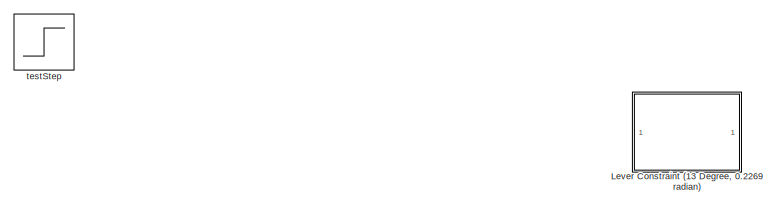
[diagram: root canvas - part 1/2, top center region]
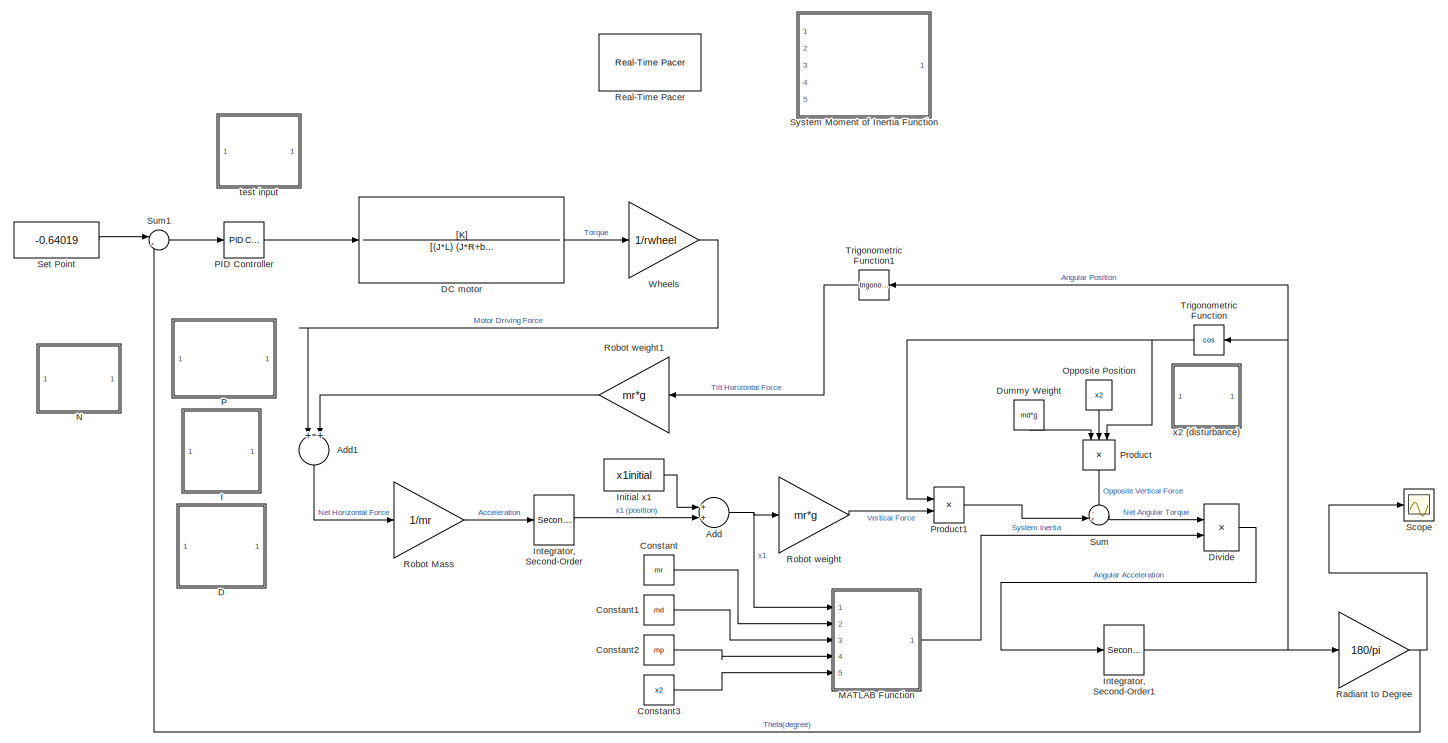
[diagram: root canvas - part 2/2, full width, middle band]
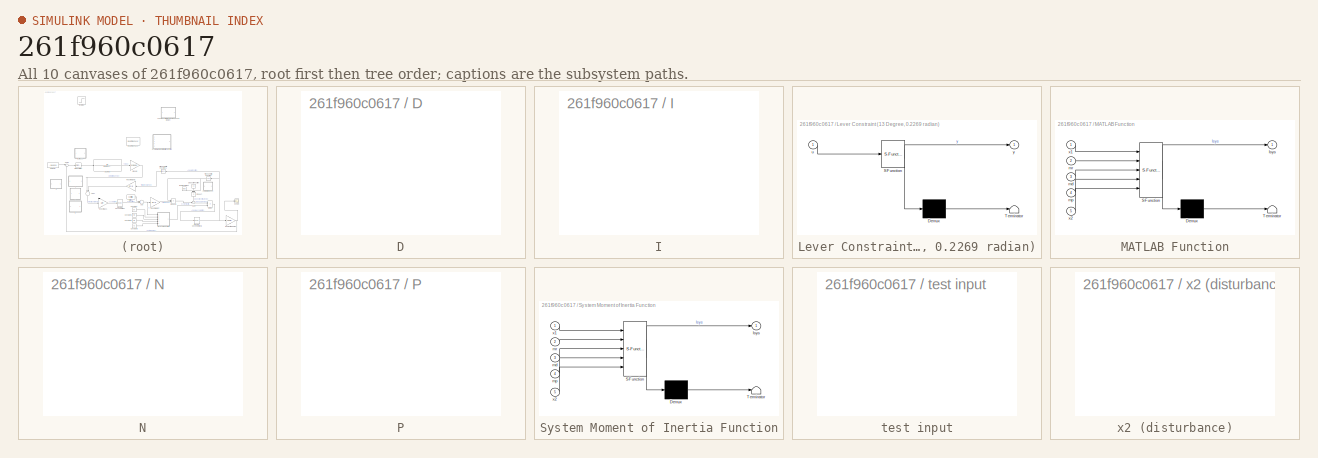
[diagram: thumbnail index - all 10 canvases of the model, root first then tree order]
MODEL slx_261f960c0617
KIND model
CONFIG AbsTol = auto
CONFIG FixedStep = 0.01
CONFIG MaxStep = auto
CONFIG MinStep = auto
CONFIG RelTol = 1e-3
CONFIG SampleTimeConstraint = Unconstrained
CONFIG Solver = ode3
CONFIG SolverMode = Auto
CONFIG SolverName = ode3
CONFIG StartTime = 0.0
CONFIG StopTime = Inf
BLOCK [Sum] Add
  InputSameDT = off
  OutDataTypeStr = Inherit: Inherit via internal rule
  Ports = [2, 1]
  SaturateOnIntegerOverflow = off
BLOCK [Sum] Add1
  InputSameDT = off
  OutDataTypeStr = Inherit: Inherit via internal rule
  Ports = [2, 1]
  SaturateOnIntegerOverflow = off
BLOCK [Constant] Constant
  Value = mr
BLOCK [Constant] Constant1
  Value = md
BLOCK [Constant] Constant2
  Value = mp
BLOCK [Constant] Constant3
  Value = x2
BLOCK [SubSystem] D
  DialogController = hmiCreateDDGDialog
  IsWebBlock = on
  MaskHideContents = on
  Ports = []
  RequestExecContextInheritance = off
BLOCK [TransferFcn] DC motor
  Denominator = [(J*L) (J*R+b*L) (b*R+K*K)]
  Numerator = [K]
BLOCK [Product] Divide
  InputSameDT = off
  Inputs = */
  OutDataTypeStr = Inherit: Inherit via internal rule
  Ports = [2, 1]
  RndMeth = Floor
  SaturateOnIntegerOverflow = off
BLOCK [Constant] Dummy Weight
  Value = md*g
BLOCK [SubSystem] I
  DialogController = hmiCreateDDGDialog
  IsWebBlock = on
  MaskHideContents = on
  Ports = []
  RequestExecContextInheritance = off
BLOCK [Constant] Initial x1
  Value = x1initial
BLOCK [SecondOrderIntegrator] Integrator, Second-Order
  LimitX = on
  LowerLimitX = -2
  Ports = [1, 1]
  ReinitDXDTwhenXreachesSaturation = on
  ShowOutput = x
  UpperLimitX = 2
BLOCK [SecondOrderIntegrator] Integrator, Second-Order1
  ICX = 0
  LimitX = on
  LowerLimitX = -0.227
  Ports = [1, 1]
  ReinitDXDTwhenXreachesSaturation = on
  ShowOutput = x
  UpperLimitX = 0.227
BLOCK [SubSystem] Lever Constraint (13 Degree, 0.2269 radian)
  ErrorFcn = Stateflow.Translate.translate
  PermitHierarchicalResolution = ExplicitOnly
  Ports = [1, 1]
  RequestExecContextInheritance = off
  SFBlockType = MATLAB Function
  TreatAsAtomicUnit = on
BLOCK [Demux] Lever Constraint (13 Degree, 0.2269 radian)/ Demux 
  Outputs = 1
  Ports = [1, 1]
BLOCK [S-Function] Lever Constraint (13 Degree, 0.2269 radian)/ SFunction 
  EnableBusSupport = on
  FunctionName = sf_sfun
  PortCounts = [1 2]
  Ports = [1, 2]
  Tag = Stateflow S-Function SeesawModelYeniRT_2015a 1
BLOCK [Terminator] Lever Constraint (13 Degree, 0.2269 radian)/ Terminator 
BLOCK [Inport] Lever Constraint (13 Degree, 0.2269 radian)/u
  IconDisplay = Port number
BLOCK [Outport] Lever Constraint (13 Degree, 0.2269 radian)/y
  IconDisplay = Port number
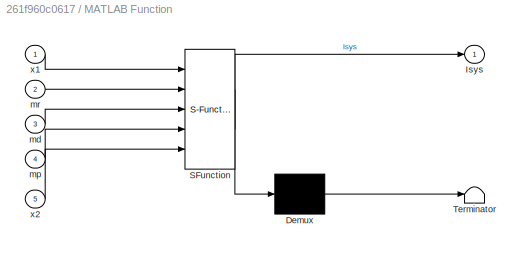
BLOCK [SubSystem] MATLAB Function
  ErrorFcn = Stateflow.Translate.translate
  PermitHierarchicalResolution = ExplicitOnly
  Ports = [5, 1]
  RequestExecContextInheritance = off
  SFBlockType = MATLAB Function
  TreatAsAtomicUnit = on
BLOCK [Demux] MATLAB Function/ Demux 
  Outputs = 1
  Ports = [1, 1]
BLOCK [S-Function] MATLAB Function/ SFunction 
  EnableBusSupport = on
  FunctionName = sf_sfun
  PortCounts = [5 2]
  Ports = [5, 2]
  Tag = Stateflow S-Function SeesawModelYeniRT_2015a 3
BLOCK [Terminator] MATLAB Function/ Terminator 
BLOCK [Outport] MATLAB Function/Isys
  IconDisplay = Port number
BLOCK [Inport] MATLAB Function/md
  IconDisplay = Port number
  Port = 3
BLOCK [Inport] MATLAB Function/mp
  IconDisplay = Port number
  Port = 4
BLOCK [Inport] MATLAB Function/mr
  IconDisplay = Port number
  Port = 2
BLOCK [Inport] MATLAB Function/x1
  IconDisplay = Port number
BLOCK [Inport] MATLAB Function/x2
  IconDisplay = Port number
  Port = 5
BLOCK [SubSystem] N
  DialogController = hmiCreateDDGDialog
  IsWebBlock = on
  MaskHideContents = on
  Ports = []
  RequestExecContextInheritance = off
BLOCK [Constant] Opposite Position
  Value = x2
BLOCK [SubSystem] P
  DialogController = hmiCreateDDGDialog
  IsWebBlock = on
  MaskHideContents = on
  Ports = []
  RequestExecContextInheritance = off
BLOCK [Reference] PID Controller  REF=simulink/Continuous/PID Controller
  AntiWindupMode = none
  Controller = PID
  ControllerParametersSource = internal
  D = 6.5525
  DGainOutDataTypeStr = Inherit: Inherit via internal rule
  DOutDataTypeStr = Inherit: Inherit via internal rule
  DOutMax = []
  DOutMin = []
  DParamDataTypeStr = Inherit: Inherit via internal rule
  DParamMax = []
  DParamMin = []
  DProdOutDataTypeStr = Inherit: Inherit via internal rule
  DifferentiatorICPrevScaledInput = 0
  DifferentiatorOutDataTypeStr = Inherit: Inherit via internal rule
  DifferentiatorOutMax = []
  DifferentiatorOutMin = []
  ExternalReset = none
  FilterContinuousStateAttributes = ''
  FilterMethod = Forward Euler
  FilterOutDataTypeStr = Inherit: Inherit via internal rule
  FilterOutMax = []
  FilterOutMin = []
  FilterRTWStateStorageClass = Auto
  FilterStateMustResolveToSignalObject = off
  Form = Parallel
  I = 4.8248
  IGainOutDataTypeStr = Inherit: Inherit via internal rule
  IOutDataTypeStr = Inherit: Inherit via internal rule
  IOutMax = []
  IOutMin = []
  IParamDataTypeStr = Inherit: Inherit via internal rule
  IParamMax = []
  IParamMin = []
  IProdOutDataTypeStr = Inherit: Inherit via internal rule
  IgnoreLimit = off
  InitialConditionForFilter = 0
  InitialConditionForIntegrator = 0
  InitialConditionSource = internal
  IntegratorContinuousStateAttributes = ''
  IntegratorMethod = Forward Euler
  IntegratorOutDataTypeStr = Inherit: Inherit via internal rule
  IntegratorOutMax = []
  IntegratorOutMin = []
  IntegratorRTWStateStorageClass = Auto
  IntegratorStateMustResolveToSignalObject = off
  Kb = 1
  KbOutDataTypeStr = Inherit: Inherit via internal rule
  KbOutMax = []
  KbOutMin = []
  KbParamDataTypeStr = Inherit: Inherit via internal rule
  KbParamMax = []
  KbParamMin = []
  Kt = 1
  KtOutDataTypeStr = Inherit: Inherit via internal rule
  KtOutMax = []
  KtOutMin = []
  KtParamDataTypeStr = Inherit: Inherit via internal rule
  KtParamMax = []
  KtParamMin = []
  LimitOutput = off
  LinearizeAsGain = on
  LockScale = off
  LowerSaturationLimit = -inf
  N = 184.4724
  NGainOutDataTypeStr = Inherit: Inherit via internal rule
  NOutDataTypeStr = Inherit: Inherit via internal rule
  NOutMax = []
  NOutMin = []
  NParamDataTypeStr = Inherit: Inherit via internal rule
  NParamMax = []
  NParamMin = []
  NProdOutDataTypeStr = Inherit: Inherit via internal rule
  P = 0.2
  PGainOutDataTypeStr = Inherit: Inherit via internal rule
  POutDataTypeStr = Inherit: Inherit via internal rule
  POutMax = []
  POutMin = []
  PParamDataTypeStr = Inherit: Inherit via internal rule
  PParamMax = []
  PParamMin = []
  PProdOutDataTypeStr = Inherit: Inherit via internal rule
  Ports = [1, 1]
  RndMeth = Floor
  SampleTime = -1
  SaturateOnIntegerOverflow = off
  SaturationOutDataTypeStr = Inherit: Same as input
  SaturationOutMax = []
  SaturationOutMin = []
  SourceBlock = simulink/Continuous/PID Controller
  SourceType = PID 1dof
  SumAccumDataTypeStr = Inherit: Inherit via internal rule
  SumDAccumDataTypeStr = Inherit: Inherit via internal rule
  SumDOutDataTypeStr = Inherit: Inherit via internal rule
  SumDOutMax = []
  SumDOutMin = []
  SumI1AccumDataTypeStr = Inherit: Inherit via internal rule
  SumI1OutDataTypeStr = Inherit: Inherit via internal rule
  SumI1OutMax = []
  SumI1OutMin = []
  SumI2AccumDataTypeStr = Inherit: Inherit via internal rule
  SumI2OutDataTypeStr = Inherit: Inherit via internal rule
  SumI2OutMax = []
  SumI2OutMin = []
  SumI3AccumDataTypeStr = Inherit: Inherit via internal rule
  SumI3OutDataTypeStr = Inherit: Inherit via internal rule
  SumI3OutMax = []
  SumI3OutMin = []
  SumOutDataTypeStr = Inherit: Inherit via internal rule
  SumOutMax = []
  SumOutMin = []
  TimeDomain = Continuous-time
  TrackingMode = off
  UpperSaturationLimit = inf
  UseFilter = on
  ZeroCross = on
BLOCK [Product] Product
  InputSameDT = off
  Inputs = 3
  OutDataTypeStr = Inherit: Inherit via internal rule
  Ports = [3, 1]
  RndMeth = Floor
  SaturateOnIntegerOverflow = off
BLOCK [Product] Product1
  InputSameDT = off
  OutDataTypeStr = Inherit: Inherit via internal rule
  Ports = [2, 1]
  RndMeth = Floor
  SaturateOnIntegerOverflow = off
BLOCK [Gain] Radiant to Degree
  Gain = 180/pi
  OutDataTypeStr = Inherit: Inherit via internal rule
  ParamDataTypeStr = Inherit: Inherit via internal rule
  SaturateOnIntegerOverflow = off
BLOCK [Reference] Real-Time Pacer  REF=realtime_pacer_lib/Real-Time Pacer
  Ports = []
  SourceBlock = realtime_pacer_lib/Real-Time Pacer
  SourceType = RealTime_Pacer
  simTimePerRealTime = 0.7
BLOCK [Gain] Robot Mass
  Gain = 1/mr
  OutDataTypeStr = Inherit: Inherit via internal rule
  ParamDataTypeStr = Inherit: Inherit via internal rule
  SaturateOnIntegerOverflow = off
BLOCK [Gain] Robot weight
  Gain = mr*g
  OutDataTypeStr = Inherit: Inherit via internal rule
  ParamDataTypeStr = Inherit: Inherit via internal rule
  SaturateOnIntegerOverflow = off
BLOCK [Gain] Robot weight1
  Gain = mr*g
  OutDataTypeStr = Inherit: Inherit via internal rule
  ParamDataTypeStr = Inherit: Inherit via internal rule
  SaturateOnIntegerOverflow = off
BLOCK [Scope] Scope
  Floating = off
  NumInputPorts = 1
  Ports = [1]
  TimeRange = 100
  YMax = 15
  YMin = -15
BLOCK [Constant] Set Point
  Value = -0.64019
BLOCK [Sum] Sum
  IconShape = round
  InputSameDT = off
  Inputs = -+|
  OutDataTypeStr = Inherit: Inherit via internal rule
  Ports = [2, 1]
  SaturateOnIntegerOverflow = off
BLOCK [Sum] Sum1
  IconShape = round
  InputSameDT = off
  Inputs = |+-
  OutDataTypeStr = Inherit: Inherit via internal rule
  Ports = [2, 1]
  SaturateOnIntegerOverflow = off
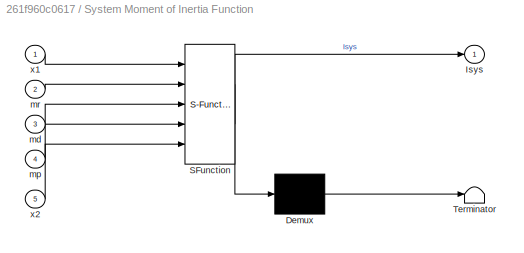
BLOCK [SubSystem] System Moment of Inertia Function
  ErrorFcn = Stateflow.Translate.translate
  PermitHierarchicalResolution = ExplicitOnly
  Ports = [5, 1]
  RequestExecContextInheritance = off
  SFBlockType = MATLAB Function
  TreatAsAtomicUnit = on
BLOCK [Demux] System Moment of Inertia Function/ Demux 
  Outputs = 1
  Ports = [1, 1]
BLOCK [S-Function] System Moment of Inertia Function/ SFunction 
  EnableBusSupport = on
  FunctionName = sf_sfun
  PortCounts = [5 2]
  Ports = [5, 2]
  Tag = Stateflow S-Function SeesawModelYeniRT_2015a 2
BLOCK [Terminator] System Moment of Inertia Function/ Terminator 
BLOCK [Outport] System Moment of Inertia Function/Isys
  IconDisplay = Port number
BLOCK [Inport] System Moment of Inertia Function/md
  IconDisplay = Port number
  Port = 3
BLOCK [Inport] System Moment of Inertia Function/mp
  IconDisplay = Port number
  Port = 4
BLOCK [Inport] System Moment of Inertia Function/mr
  IconDisplay = Port number
  Port = 2
BLOCK [Inport] System Moment of Inertia Function/x1
  IconDisplay = Port number
BLOCK [Inport] System Moment of Inertia Function/x2
  IconDisplay = Port number
  Port = 5
BLOCK [Trigonometry] Trigonometric Function
  Operator = cos
  Ports = [1, 1]
BLOCK [Trigonometry] Trigonometric Function1
  Ports = [1, 1]
BLOCK [Gain] Wheels
  Gain = 1/rwheel
  OutDataTypeStr = Inherit: Inherit via internal rule
  ParamDataTypeStr = Inherit: Inherit via internal rule
  SaturateOnIntegerOverflow = off
BLOCK [SubSystem] test input
  DialogController = hmiCreateDDGDialog
  IsWebBlock = on
  MaskHideContents = on
  Ports = []
  RequestExecContextInheritance = off
BLOCK [Step] testStep
  After = testStep
  SampleTime = 0
BLOCK [SubSystem] x2 (disturbance)
  DialogController = hmiCreateDDGDialog
  IsWebBlock = on
  MaskHideContents = on
  Ports = []
  RequestExecContextInheritance = off
LINE Add1:1 -> Robot Mass:1
NET Add:1 -> MATLAB Function:1, Robot weight:1
LINE Constant1:1 -> MATLAB Function:3
LINE Constant2:1 -> MATLAB Function:4
LINE Constant3:1 -> MATLAB Function:5
LINE Constant:1 -> MATLAB Function:2
LINE DC motor:1 -> Wheels:1
LINE Divide:1 -> Integrator, Second-Order1:1
LINE Dummy Weight:1 -> Product:1
LINE Initial x1:1 -> Add:1
NET Integrator, Second-Order1:1 -> Radiant to Degree:1, Trigonometric Function1:1, Trigonometric Function:1
LINE Integrator, Second-Order:1 -> Add:2
LINE MATLAB Function:1 -> Divide:2
LINE Opposite Position:1 -> Product:2
LINE PID Controller:1 -> DC motor:1
LINE Product1:1 -> Sum:2
LINE Product:1 -> Sum:1
NET Radiant to Degree:1 -> Scope:1, Sum1:2
LINE Robot Mass:1 -> Integrator, Second-Order:1
LINE Robot weight1:1 -> Add1:2
LINE Robot weight:1 -> Product1:2
LINE Set Point:1 -> Sum1:1
LINE Sum1:1 -> PID Controller:1
LINE Sum:1 -> Divide:1
LINE Trigonometric Function1:1 -> Robot weight1:1
NET Trigonometric Function:1 -> Product1:1, Product:3
LINE Wheels:1 -> Add1:1
note: NET lines group one-source signal fan-out (src -> all destinations, sorted); 1:1 wires keep LINE
CHART Lever Constraint (13 Degree, 0.2269 radian) states=1 transitions=1
  STATE_LABEL 'eML_blk_kernel()'
  STATE_LABEL 'SCRIPT:\nfunction y = leverConstraint(u)\nif u>=0.2269    %0.2269=13*(pi/180)\n    y=0.2269;\nelseif u<=-0.2269\n    y=-0.2269;\nelse\n    y=u;\nend'
CHART System Moment of Inertia Function states=1 transitions=1
  STATE_LABEL 'eML_blk_kernel()'
  STATE_LABEL 'SCRIPT:\nfunction Isys = Inertia(x1, mr, md, mp, x2)\nM=mr+md+mp;\nMmasses=mr+md;\nIsys=M*((Mmasses*((mr*x1+md*x2)/Mmasses))/M)^2;'
CHART MATLAB Function states=1 transitions=1
  STATE_LABEL 'eML_blk_kernel()'
  STATE_LABEL 'SCRIPT:\nfunction Isys = Inertia(x1, mr, md, mp, x2)\nM=mr+md+mp;\nMmasses=mr+md;\nCGm=(mr*x1-md*x2)/(mr+md);\nCGs=(Mmasses*CGm)/M;\nIsys=M*CGs^2;'
